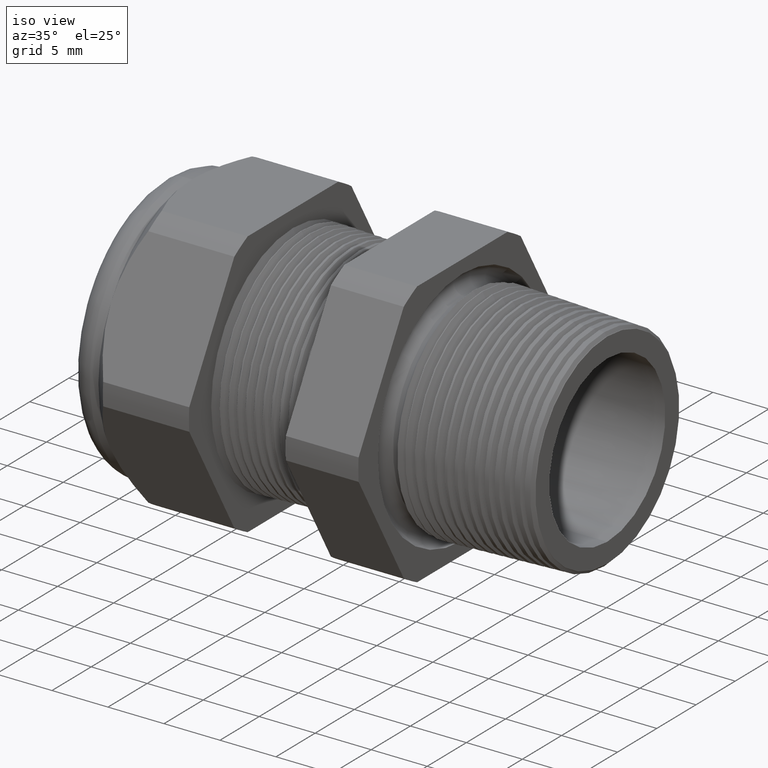
[diagram: clean part render]
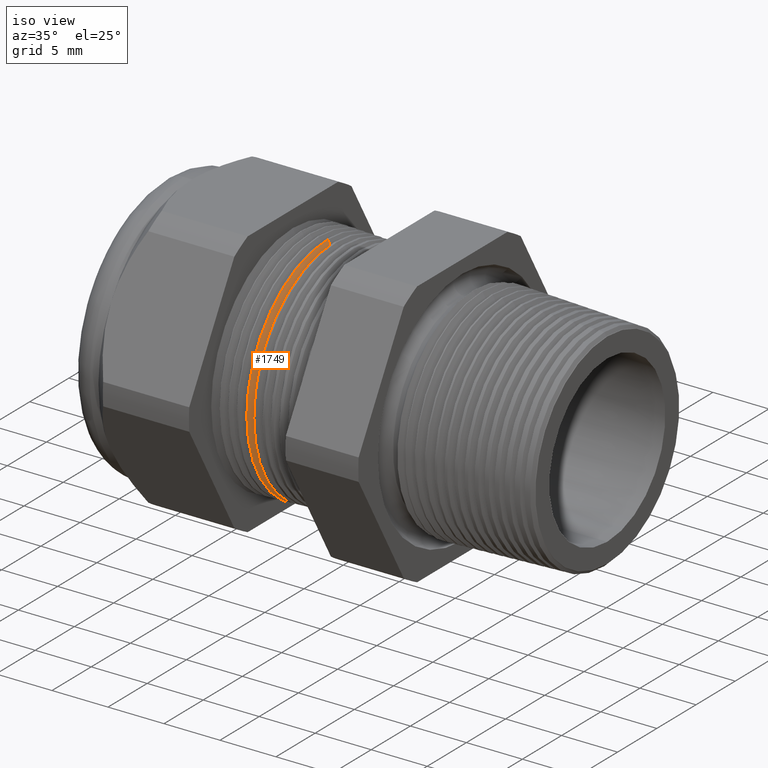
[diagram: same view with one face highlighted and labeled with its STEP entity id]
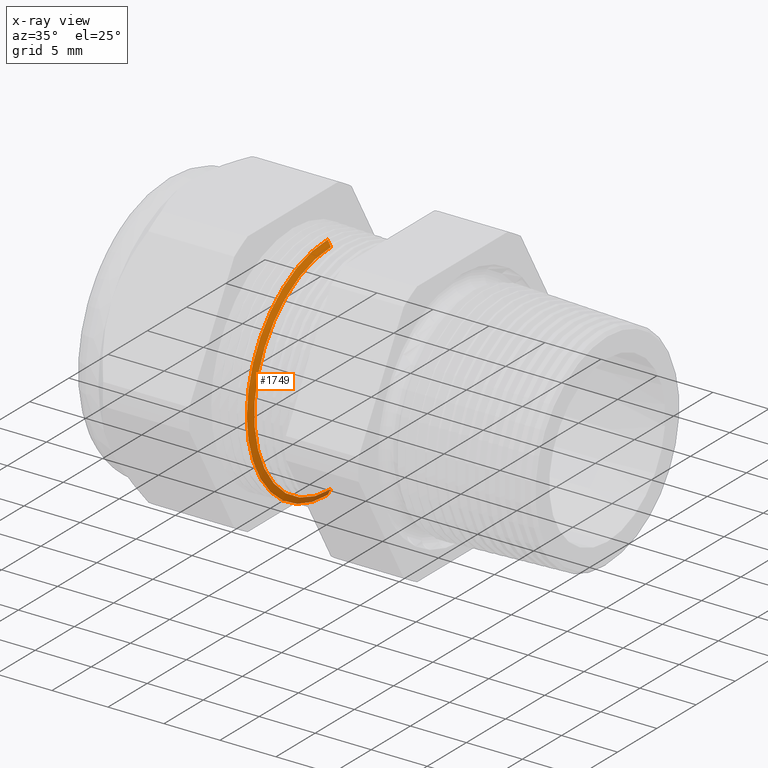
[diagram: x-ray of the same camera — body ghosted, the highlighted face saturated]
A machine part, iso view. The second image highlights one B-rep face of the part: STEP entity #1749.
The next image is the same camera in x-ray: the body ghosted, the highlighted face saturated — about 5% of this face is hidden behind the body in this view.
In plain terms, the highlighted conical surface has half-angle 62 deg.
Its self-contained STEP definition (entity closure, byte-faithful):
#673 = DIRECTION ( 'NONE',  ( -0.4694715627859021900, 0.0000000000000000000, 0.8829475928589208800 ) ) ;
#674 = VECTOR ( 'NONE', #673, 39.37007874015748100 ) ;
#675 = CARTESIAN_POINT ( 'NONE',  ( -0.7854330708661420000, 0.0000000000000000000, 0.4099999999999999800 ) ) ;
#676 = LINE ( 'NONE', #675, #674 ) ;
#678 = CARTESIAN_POINT ( 'NONE',  ( -0.7831627927169194600, 0.0000000000000000000, 0.4057302278010600500 ) ) ;
#702 = CARTESIAN_POINT ( 'NONE',  ( -0.7718805942085762400, 0.0000000000000000000, 0.3845114984791284100 ) ) ;
#714 = DIRECTION ( 'NONE',  ( -0.4694715627859021900, 1.081298943409537900E-016, -0.8829475928589208800 ) ) ;
#715 = VECTOR ( 'NONE', #714, 39.37007874015748100 ) ;
#716 = CARTESIAN_POINT ( 'NONE',  ( -0.7854330708661420000, 5.021051876504148100E-017, -0.4099999999999999800 ) ) ;
#717 = LINE ( 'NONE', #716, #715 ) ;
#718 = CARTESIAN_POINT ( 'NONE',  ( -0.7831627927169194600, 4.969904580228321200E-017, -0.4057302278010600500 ) ) ;
#751 = CARTESIAN_POINT ( 'NONE',  ( -0.7718805942085762400, 4.838835003208557700E-017, -0.3845114984791284100 ) ) ;
#1237 = EDGE_CURVE ( 'NONE', #5829, #5838, #3614, .T. ) ;
#1749 = ADVANCED_FACE ( 'NONE', ( #4644 ), #4640, .T. ) ;
#1750 = EDGE_LOOP ( 'NONE', ( #1752, #1753, #1758, #1759 ) ) ;
#1752 = ORIENTED_EDGE ( 'NONE', *, *, #5839, .F. ) ;
#1753 = ORIENTED_EDGE ( 'NONE', *, *, #1756, .F. ) ;
#1756 = EDGE_CURVE ( 'NONE', #5846, #5856, #4630, .T. ) ;
#1758 = ORIENTED_EDGE ( 'NONE', *, *, #5831, .T. ) ;
#1759 = ORIENTED_EDGE ( 'NONE', *, *, #1237, .T. ) ;
#3609 = DIRECTION ( 'NONE',  ( 0.0000000000000000000, 0.0000000000000000000, 1.000000000000000000 ) ) ;
#3611 = DIRECTION ( 'NONE',  ( 1.000000000000000000, 0.0000000000000000000, 0.0000000000000000000 ) ) ;
#3613 = AXIS2_PLACEMENT_3D ( 'NONE', #3625, #3611, #3609 ) ;
#3614 = CIRCLE ( 'NONE', #3613, 0.4057302278010600500 ) ;
#3625 = CARTESIAN_POINT ( 'NONE',  ( -0.7831627927169194600, 0.0000000000000000000, 0.0000000000000000000 ) ) ;
#4626 = DIRECTION ( 'NONE',  ( 0.0000000000000000000, 0.0000000000000000000, -1.000000000000000000 ) ) ;
#4627 = DIRECTION ( 'NONE',  ( 1.000000000000000000, 0.0000000000000000000, 0.0000000000000000000 ) ) ;
#4628 = CARTESIAN_POINT ( 'NONE',  ( -0.7718805942085762400, 0.0000000000000000000, 0.0000000000000000000 ) ) ;
#4629 = AXIS2_PLACEMENT_3D ( 'NONE', #4628, #4627, #4626 ) ;
#4630 = CIRCLE ( 'NONE', #4629, 0.3845114984791284100 ) ;
#4636 = DIRECTION ( 'NONE',  ( 0.0000000000000000000, 0.0000000000000000000, 1.000000000000000000 ) ) ;
#4637 = DIRECTION ( 'NONE',  ( -1.000000000000000000, 0.0000000000000000000, 0.0000000000000000000 ) ) ;
#4638 = CARTESIAN_POINT ( 'NONE',  ( -0.7854330708661420000, 0.0000000000000000000, 0.0000000000000000000 ) ) ;
#4639 = AXIS2_PLACEMENT_3D ( 'NONE', #4638, #4637, #4636 ) ;
#4640 = CONICAL_SURFACE ( 'NONE', #4639, 0.4099999999999999800, 1.082104136236471400 ) ;
#4644 = FACE_OUTER_BOUND ( 'NONE', #1750, .T. ) ;
#5829 = VERTEX_POINT ( 'NONE', #678 ) ;
#5831 = EDGE_CURVE ( 'NONE', #5846, #5829, #676, .T. ) ;
#5838 = VERTEX_POINT ( 'NONE', #718 ) ;
#5839 = EDGE_CURVE ( 'NONE', #5856, #5838, #717, .T. ) ;
#5846 = VERTEX_POINT ( 'NONE', #702 ) ;
#5856 = VERTEX_POINT ( 'NONE', #751 ) ;